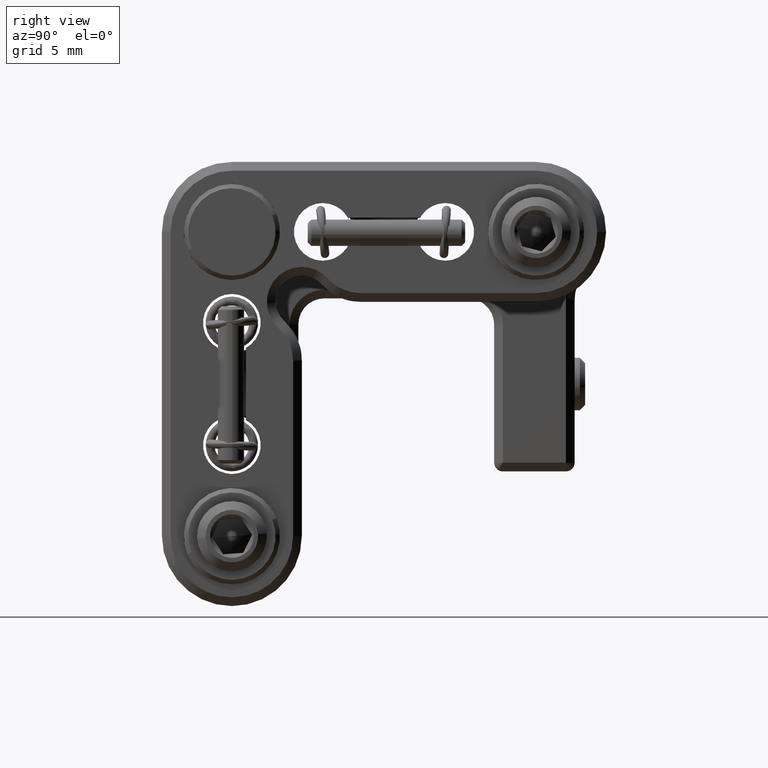
[diagram: clean part render]
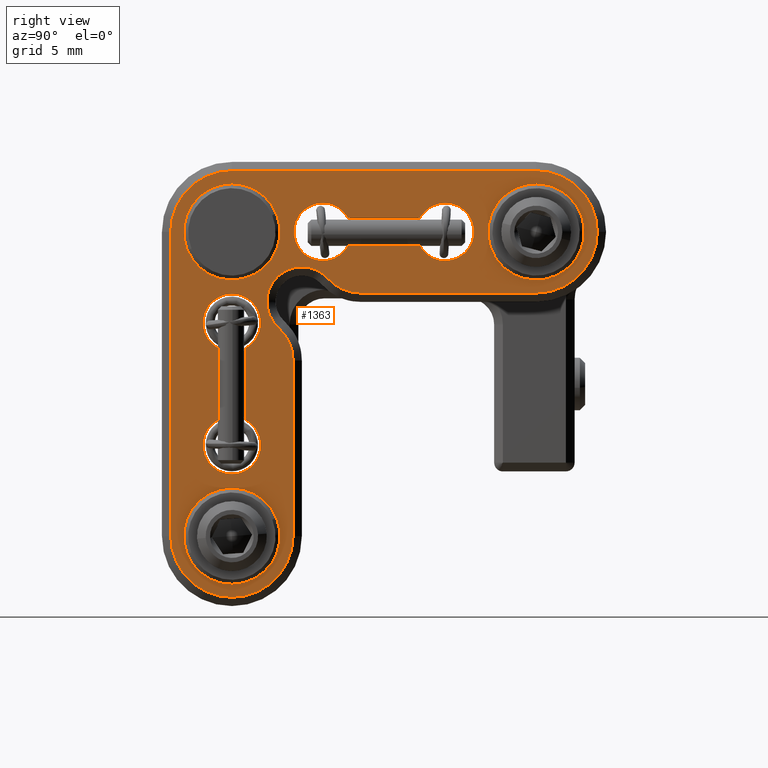
[diagram: same view with one face highlighted and labeled with its STEP entity id]
A machine part, right view. The second image highlights one B-rep face of the part: STEP entity #1363.
In plain terms, the highlighted planar face has unit normal (1, 0, 0).
Its self-contained STEP definition (entity closure, byte-faithful):
#95 = CARTESIAN_POINT ( 'NONE',  ( 27.84426557823278969, 7.499999999999995559, -9.954101966249677247 ) ) ;
#246 = DIRECTION ( 'NONE',  ( 0.0000000000000000000, 0.0000000000000000000, 1.000000000000000000 ) ) ;
#363 = EDGE_CURVE ( 'NONE', #4328, #19813, #10377, .T. ) ;
#377 = VERTEX_POINT ( 'NONE', #20586 ) ;
#387 = CARTESIAN_POINT ( 'NONE',  ( 27.84426557823278969, 21.40000000000000924, -2.599999999999991207 ) ) ;
#492 = CARTESIAN_POINT ( 'NONE',  ( 27.84426557823278969, 21.40000000000000924, 0.1500000000000016875 ) ) ;
#505 = LINE ( 'NONE', #95, #780 ) ;
#544 = DIRECTION ( 'NONE',  ( 0.0000000000000000000, 0.0000000000000000000, 1.000000000000000000 ) ) ;
#579 = EDGE_CURVE ( 'NONE', #20325, #10452, #13112, .T. ) ;
#700 = AXIS2_PLACEMENT_3D ( 'NONE', #21439, #9290, #19477 ) ;
#780 = VECTOR ( 'NONE', #3308, 1000.000000000000000 ) ;
#1047 = ORIENTED_EDGE ( 'NONE', *, *, #8469, .T. ) ;
#1068 = ORIENTED_EDGE ( 'NONE', *, *, #8689, .T. ) ;
#1241 = AXIS2_PLACEMENT_3D ( 'NONE', #2895, #11622, #11480 ) ;
#1311 = DIRECTION ( 'NONE',  ( 0.0000000000000000000, 0.0000000000000000000, 1.000000000000000000 ) ) ;
#1329 = CARTESIAN_POINT ( 'NONE',  ( 27.84426557823278969, 4.799999999999975842, -13.35691303103384620 ) ) ;
#1359 = VERTEX_POINT ( 'NONE', #16280 ) ;
#1363 = ADVANCED_FACE ( 'NONE', ( #14708, #17972, #7256, #2532, #20708, #10040 ), #14381, .T. ) ;
#1411 = CARTESIAN_POINT ( 'NONE',  ( 27.84426557823278969, 3.999999999999976019, -14.80000000000002558 ) ) ;
#1501 = DIRECTION ( 'NONE',  ( 0.0000000000000000000, 0.0000000000000000000, 1.000000000000000000 ) ) ;
#1588 = CARTESIAN_POINT ( 'NONE',  ( 27.84426557823278969, 9.199999999999999289, -0.9500000000000328182 ) ) ;
#1621 = DIRECTION ( 'NONE',  ( 1.025309737829606120E-23, 6.720346064414088947E-17, -1.000000000000000000 ) ) ;
#1653 = ORIENTED_EDGE ( 'NONE', *, *, #20885, .F. ) ;
#1687 = CARTESIAN_POINT ( 'NONE',  ( 27.84426557823278969, 4.000000000000008882, -19.99999999999999289 ) ) ;
#1800 = CIRCLE ( 'NONE', #6298, 1.649999999999998579 ) ;
#1834 = ORIENTED_EDGE ( 'NONE', *, *, #4598, .F. ) ;
#2038 = DIRECTION ( 'NONE',  ( 1.000000000000000000, 8.833440731914468542E-23, 5.569080924222307690E-23 ) ) ;
#2102 = VERTEX_POINT ( 'NONE', #3934 ) ;
#2162 = VERTEX_POINT ( 'NONE', #7538 ) ;
#2172 = VERTEX_POINT ( 'NONE', #14554 ) ;
#2183 = CIRCLE ( 'NONE', #10741, 3.499999999999989342 ) ;
#2202 = CIRCLE ( 'NONE', #3598, 3.499999999999990230 ) ;
#2277 = CARTESIAN_POINT ( 'NONE',  ( 27.84426557823278969, 21.40000000000000924, -2.599999999999998312 ) ) ;
#2370 = EDGE_LOOP ( 'NONE', ( #18186, #8114 ) ) ;
#2418 = CARTESIAN_POINT ( 'NONE',  ( 27.84426557823278969, 21.40000000000000924, -2.599999999999991207 ) ) ;
#2457 = DIRECTION ( 'NONE',  ( 1.000000000000000000, 8.833440731914468542E-23, 5.569080924222307690E-23 ) ) ;
#2532 = FACE_BOUND ( 'NONE', #2370, .T. ) ;
#2561 = CARTESIAN_POINT ( 'NONE',  ( 27.84426557823278969, 4.799999999999975842, -14.97127930704961152 ) ) ;
#2588 = CIRCLE ( 'NONE', #9062, 1.649999999999999023 ) ;
#2660 = ORIENTED_EDGE ( 'NONE', *, *, #19869, .T. ) ;
#2785 = VERTEX_POINT ( 'NONE', #16351 ) ;
#2801 = ORIENTED_EDGE ( 'NONE', *, *, #13597, .F. ) ;
#2807 = ORIENTED_EDGE ( 'NONE', *, *, #12522, .T. ) ;
#2895 = CARTESIAN_POINT ( 'NONE',  ( 27.84426557823278969, 8.000000000000007105, -6.599999999999992539 ) ) ;
#2918 = LINE ( 'NONE', #4532, #21113 ) ;
#2925 = CARTESIAN_POINT ( 'NONE',  ( 27.84426557823278969, 4.799999999999974065, -9.243086968966206740 ) ) ;
#3214 = VERTEX_POINT ( 'NONE', #9219 ) ;
#3308 = DIRECTION ( 'NONE',  ( -1.025309737829608030E-23, 6.938893903907227145E-17, 1.000000000000000000 ) ) ;
#3371 = EDGE_CURVE ( 'NONE', #10542, #2785, #2588, .T. ) ;
#3591 = AXIS2_PLACEMENT_3D ( 'NONE', #22551, #11837, #13934 ) ;
#3598 = AXIS2_PLACEMENT_3D ( 'NONE', #15015, #2457, #14800 ) ;
#3622 = VERTEX_POINT ( 'NONE', #2925 ) ;
#3635 = DIRECTION ( 'NONE',  ( 1.000000000000000000, 8.833440731914468542E-23, 5.569080924222307690E-23 ) ) ;
#3809 = CARTESIAN_POINT ( 'NONE',  ( 27.84426557823278969, 21.40000000000000924, -5.349999999999997868 ) ) ;
#3851 = DIRECTION ( 'NONE',  ( 0.0000000000000000000, 0.0000000000000000000, -1.000000000000000000 ) ) ;
#3934 = CARTESIAN_POINT ( 'NONE',  ( 27.84426557823278969, 4.000000000000008882, -5.349999999999996980 ) ) ;
#3936 = AXIS2_PLACEMENT_3D ( 'NONE', #9473, #2038, #3851 ) ;
#3963 = DIRECTION ( 'NONE',  ( 0.0000000000000000000, 0.0000000000000000000, 1.000000000000000000 ) ) ;
#3977 = DIRECTION ( 'NONE',  ( -1.000000000000000000, -8.833440731914468542E-23, -5.569080924222307690E-23 ) ) ;
#4009 = LINE ( 'NONE', #22085, #13626 ) ;
#4046 = CARTESIAN_POINT ( 'NONE',  ( 27.84426557823278969, 16.20000000000000639, -2.600000000000041389 ) ) ;
#4075 = DIRECTION ( 'NONE',  ( 1.000000000000000000, 8.833440731914468542E-23, 5.569080924222307690E-23 ) ) ;
#4328 = VERTEX_POINT ( 'NONE', #17378 ) ;
#4453 = VERTEX_POINT ( 'NONE', #19357 ) ;
#4521 = CARTESIAN_POINT ( 'NONE',  ( 27.84426557823278969, 3.199999999999975309, -13.35691303103384620 ) ) ;
#4532 = CARTESIAN_POINT ( 'NONE',  ( 27.84426557823278969, 21.40000000000000924, -6.099999999999981881 ) ) ;
#4598 = EDGE_CURVE ( 'NONE', #14950, #6392, #21520, .T. ) ;
#4667 = CARTESIAN_POINT ( 'NONE',  ( 27.84426557823278969, 3.999999999999989786, -7.800000000000020250 ) ) ;
#4671 = EDGE_CURVE ( 'NONE', #19172, #7885, #14663, .T. ) ;
#4760 = VERTEX_POINT ( 'NONE', #20329 ) ;
#4775 = EDGE_CURVE ( 'NONE', #10452, #3622, #13514, .T. ) ;
#4802 = DIRECTION ( 'NONE',  ( -1.378096284421531633E-22, 1.000000000000000000, -7.781569178111273030E-16 ) ) ;
#4807 = AXIS2_PLACEMENT_3D ( 'NONE', #2418, #13281, #7897 ) ;
#4841 = DIRECTION ( 'NONE',  ( -1.378096284421531633E-22, 1.000000000000000000, -6.938893903907227145E-17 ) ) ;
#5036 = CARTESIAN_POINT ( 'NONE',  ( 27.84426557823278969, 9.199999999999999289, -4.250000000000030198 ) ) ;
#5074 = CARTESIAN_POINT ( 'NONE',  ( 27.84426557823278969, 0.5000000000000143219, -2.599999999999991207 ) ) ;
#5245 = DIRECTION ( 'NONE',  ( 1.000000000000000000, 8.833440731914468542E-23, 5.569080924222307690E-23 ) ) ;
#5393 = CARTESIAN_POINT ( 'NONE',  ( 27.84426557823278969, 7.499999999999995559, -9.954101966249677247 ) ) ;
#5473 = CIRCLE ( 'NONE', #11267, 1.649999999999998579 ) ;
#5625 = EDGE_CURVE ( 'NONE', #21102, #8852, #14871, .T. ) ;
#5666 = EDGE_LOOP ( 'NONE', ( #22453, #11031, #8516, #19542, #10330, #1653 ) ) ;
#5882 = EDGE_CURVE ( 'NONE', #21559, #21102, #7153, .T. ) ;
#5927 = CARTESIAN_POINT ( 'NONE',  ( 27.84426557823278969, 16.37127930704962608, -1.799999999999966516 ) ) ;
#6008 = ORIENTED_EDGE ( 'NONE', *, *, #13223, .T. ) ;
#6026 = EDGE_CURVE ( 'NONE', #1359, #22389, #2183, .T. ) ;
#6109 = VERTEX_POINT ( 'NONE', #5036 ) ;
#6219 = CARTESIAN_POINT ( 'NONE',  ( 27.84426557823278969, 4.000000000000008882, -2.599999999999998312 ) ) ;
#6258 = AXIS2_PLACEMENT_3D ( 'NONE', #8998, #15761, #14146 ) ;
#6288 = ORIENTED_EDGE ( 'NONE', *, *, #6026, .T. ) ;
#6298 = AXIS2_PLACEMENT_3D ( 'NONE', #12779, #6318, #18073 ) ;
#6318 = DIRECTION ( 'NONE',  ( 1.000000000000000000, 8.833440731914468542E-23, 5.569080924222307690E-23 ) ) ;
#6392 = VERTEX_POINT ( 'NONE', #492 ) ;
#6561 = CARTESIAN_POINT ( 'NONE',  ( 27.84426557823278969, 16.37127930704962608, -3.399999999999967493 ) ) ;
#6614 = VERTEX_POINT ( 'NONE', #13361 ) ;
#6651 = EDGE_CURVE ( 'NONE', #9926, #21572, #2918, .T. ) ;
#6683 = EDGE_CURVE ( 'NONE', #4453, #2172, #22200, .T. ) ;
#6882 = VERTEX_POINT ( 'NONE', #19585 ) ;
#7153 = CIRCLE ( 'NONE', #1241, 2.000000000000011102 ) ;
#7175 = CARTESIAN_POINT ( 'NONE',  ( 27.84426557823278969, 6.666666666666664298, -8.090711984999860107 ) ) ;
#7189 = CARTESIAN_POINT ( 'NONE',  ( 27.84426557823278969, 8.000000000000007105, -6.599999999999992539 ) ) ;
#7256 = FACE_OUTER_BOUND ( 'NONE', #15969, .T. ) ;
#7272 = AXIS2_PLACEMENT_3D ( 'NONE', #387, #16435, #19808 ) ;
#7469 = VECTOR ( 'NONE', #14976, 1000.000000000000000 ) ;
#7538 = CARTESIAN_POINT ( 'NONE',  ( 27.84426557823278969, 14.75691303103386787, -1.799999999999964739 ) ) ;
#7554 = VECTOR ( 'NONE', #7883, 1000.000000000000000 ) ;
#7633 = CARTESIAN_POINT ( 'NONE',  ( 27.84426557823278969, 16.20000000000000639, -2.600000000000041389 ) ) ;
#7638 = EDGE_CURVE ( 'NONE', #17466, #14604, #4009, .T. ) ;
#7787 = CIRCLE ( 'NONE', #19908, 3.499999999999989342 ) ;
#7837 = DIRECTION ( 'NONE',  ( 1.000000000000000000, 8.833440731914468542E-23, 5.569080924222307690E-23 ) ) ;
#7883 = DIRECTION ( 'NONE',  ( 1.378096284421531633E-22, -1.000000000000000000, 7.781569178111272044E-16 ) ) ;
#7885 = VERTEX_POINT ( 'NONE', #16915 ) ;
#7897 = DIRECTION ( 'NONE',  ( 0.0000000000000000000, 0.0000000000000000000, 1.000000000000000000 ) ) ;
#7993 = AXIS2_PLACEMENT_3D ( 'NONE', #8236, #20513, #1501 ) ;
#8051 = DIRECTION ( 'NONE',  ( -1.000000000000000000, -8.833440731914468542E-23, -5.569080924222307690E-23 ) ) ;
#8114 = ORIENTED_EDGE ( 'NONE', *, *, #18610, .T. ) ;
#8236 = CARTESIAN_POINT ( 'NONE',  ( 27.84426557823278969, 9.199999999999999289, -2.600000000000031175 ) ) ;
#8272 = EDGE_CURVE ( 'NONE', #2172, #4453, #21300, .T. ) ;
#8469 = EDGE_CURVE ( 'NONE', #377, #1359, #7787, .T. ) ;
#8516 = ORIENTED_EDGE ( 'NONE', *, *, #12793, .F. ) ;
#8689 = EDGE_CURVE ( 'NONE', #15012, #21559, #21817, .T. ) ;
#8852 = VERTEX_POINT ( 'NONE', #19342 ) ;
#8998 = CARTESIAN_POINT ( 'NONE',  ( 27.84426557823278969, 11.35410196624969181, -3.599999999999991207 ) ) ;
#9036 = AXIS2_PLACEMENT_3D ( 'NONE', #6219, #8051, #9844 ) ;
#9062 = AXIS2_PLACEMENT_3D ( 'NONE', #4046, #21666, #544 ) ;
#9219 = CARTESIAN_POINT ( 'NONE',  ( 27.84426557823278969, 4.000000000000005329, 0.8999999999999998002 ) ) ;
#9268 = EDGE_CURVE ( 'NONE', #2102, #6882, #16735, .T. ) ;
#9290 = DIRECTION ( 'NONE',  ( 1.000000000000000000, 8.833440731914468542E-23, 1.025309737829607443E-23 ) ) ;
#9409 = CIRCLE ( 'NONE', #22097, 1.649999999999998579 ) ;
#9473 = CARTESIAN_POINT ( 'NONE',  ( 27.84426557823278969, 21.40000000000000924, -2.599999999999998312 ) ) ;
#9485 = CARTESIAN_POINT ( 'NONE',  ( 27.84426557823278969, 3.199999999999973532, -9.243086968966188977 ) ) ;
#9613 = VECTOR ( 'NONE', #1621, 1000.000000000000000 ) ;
#9636 = AXIS2_PLACEMENT_3D ( 'NONE', #1687, #3635, #17709 ) ;
#9733 = AXIS2_PLACEMENT_3D ( 'NONE', #13373, #21860, #22316 ) ;
#9844 = DIRECTION ( 'NONE',  ( 0.0000000000000000000, 0.0000000000000000000, -1.000000000000000000 ) ) ;
#9858 = CIRCLE ( 'NONE', #7272, 3.499999999999990230 ) ;
#9863 = AXIS2_PLACEMENT_3D ( 'NONE', #22538, #5245, #19111 ) ;
#9926 = VERTEX_POINT ( 'NONE', #18814 ) ;
#9934 = VECTOR ( 'NONE', #22604, 1000.000000000000000 ) ;
#9942 = ORIENTED_EDGE ( 'NONE', *, *, #14046, .T. ) ;
#10040 = FACE_BOUND ( 'NONE', #12169, .T. ) ;
#10148 = AXIS2_PLACEMENT_3D ( 'NONE', #7189, #16124, #3963 ) ;
#10194 = ORIENTED_EDGE ( 'NONE', *, *, #11256, .F. ) ;
#10200 = VECTOR ( 'NONE', #4802, 1000.000000000000000 ) ;
#10289 = CARTESIAN_POINT ( 'NONE',  ( 27.84426557823278969, 4.000000000000005329, 0.8999999999999998002 ) ) ;
#10330 = ORIENTED_EDGE ( 'NONE', *, *, #579, .F. ) ;
#10377 = CIRCLE ( 'NONE', #9733, 1.649999999999998579 ) ;
#10452 = VERTEX_POINT ( 'NONE', #1329 ) ;
#10540 = EDGE_LOOP ( 'NONE', ( #1834, #10194 ) ) ;
#10542 = VERTEX_POINT ( 'NONE', #13994 ) ;
#10741 = AXIS2_PLACEMENT_3D ( 'NONE', #20440, #16773, #11694 ) ;
#10926 = AXIS2_PLACEMENT_3D ( 'NONE', #1411, #15541, #22786 ) ;
#11031 = ORIENTED_EDGE ( 'NONE', *, *, #16845, .F. ) ;
#11144 = CARTESIAN_POINT ( 'NONE',  ( 27.84426557823278969, 4.000000000000008882, -2.599999999999998312 ) ) ;
#11157 = EDGE_CURVE ( 'NONE', #15073, #2162, #21905, .T. ) ;
#11256 = EDGE_CURVE ( 'NONE', #6392, #14950, #21351, .T. ) ;
#11267 = AXIS2_PLACEMENT_3D ( 'NONE', #12685, #18120, #246 ) ;
#11280 = CARTESIAN_POINT ( 'NONE',  ( 27.84426557823278969, 16.20000000000000639, -0.9500000000000425882 ) ) ;
#11306 = CIRCLE ( 'NONE', #6258, 2.499999999999989786 ) ;
#11364 = AXIS2_PLACEMENT_3D ( 'NONE', #2277, #4075, #18223 ) ;
#11377 = ORIENTED_EDGE ( 'NONE', *, *, #12102, .T. ) ;
#11433 = ORIENTED_EDGE ( 'NONE', *, *, #8272, .F. ) ;
#11480 = DIRECTION ( 'NONE',  ( 0.0000000000000000000, 0.0000000000000000000, 1.000000000000000000 ) ) ;
#11532 = CIRCLE ( 'NONE', #14535, 1.649999999999999023 ) ;
#11622 = DIRECTION ( 'NONE',  ( -1.000000000000000000, -8.833440731914468542E-23, -5.569080924222307690E-23 ) ) ;
#11694 = DIRECTION ( 'NONE',  ( 0.0000000000000000000, 0.0000000000000000000, 1.000000000000000000 ) ) ;
#11837 = DIRECTION ( 'NONE',  ( 1.000000000000000000, 8.833440731914468542E-23, 5.569080924222307690E-23 ) ) ;
#11900 = EDGE_CURVE ( 'NONE', #2162, #4328, #12228, .T. ) ;
#12102 = EDGE_CURVE ( 'NONE', #14818, #377, #14302, .T. ) ;
#12169 = EDGE_LOOP ( 'NONE', ( #18442, #11433 ) ) ;
#12228 = LINE ( 'NONE', #5927, #7554 ) ;
#12412 = CARTESIAN_POINT ( 'NONE',  ( 27.84426557823278969, 4.000000000000008882, -19.99999999999999289 ) ) ;
#12487 = EDGE_CURVE ( 'NONE', #19813, #6109, #5473, .T. ) ;
#12522 = EDGE_CURVE ( 'NONE', #21572, #19172, #9858, .T. ) ;
#12567 = CIRCLE ( 'NONE', #22479, 1.649999999999998579 ) ;
#12685 = CARTESIAN_POINT ( 'NONE',  ( 27.84426557823278969, 9.199999999999999289, -2.600000000000031175 ) ) ;
#12779 = CARTESIAN_POINT ( 'NONE',  ( 27.84426557823278969, 3.999999999999976019, -14.80000000000002558 ) ) ;
#12793 = EDGE_CURVE ( 'NONE', #3622, #6614, #12567, .T. ) ;
#13112 = CIRCLE ( 'NONE', #10926, 1.649999999999998579 ) ;
#13139 = ORIENTED_EDGE ( 'NONE', *, *, #363, .F. ) ;
#13223 = EDGE_CURVE ( 'NONE', #3214, #14818, #2202, .T. ) ;
#13267 = ORIENTED_EDGE ( 'NONE', *, *, #5625, .T. ) ;
#13281 = DIRECTION ( 'NONE',  ( 1.000000000000000000, 8.833440731914468542E-23, 5.569080924222307690E-23 ) ) ;
#13361 = CARTESIAN_POINT ( 'NONE',  ( 27.84426557823278969, 3.999999999999989786, -6.150000000000021672 ) ) ;
#13373 = CARTESIAN_POINT ( 'NONE',  ( 27.84426557823278969, 9.199999999999999289, -2.600000000000031175 ) ) ;
#13449 = ORIENTED_EDGE ( 'NONE', *, *, #12487, .F. ) ;
#13464 = LINE ( 'NONE', #6561, #10200 ) ;
#13514 = LINE ( 'NONE', #2561, #7469 ) ;
#13597 = EDGE_CURVE ( 'NONE', #2785, #15073, #11532, .T. ) ;
#13626 = VECTOR ( 'NONE', #22319, 1000.000000000000000 ) ;
#13765 = CARTESIAN_POINT ( 'NONE',  ( 27.84426557823278969, 3.999999999999976019, -16.45000000000002416 ) ) ;
#13773 = ORIENTED_EDGE ( 'NONE', *, *, #14751, .T. ) ;
#13882 = DIRECTION ( 'NONE',  ( 1.000000000000000000, 8.833440731914468542E-23, 5.569080924222307690E-23 ) ) ;
#13934 = DIRECTION ( 'NONE',  ( 0.0000000000000000000, 0.0000000000000000000, 1.000000000000000000 ) ) ;
#13994 = CARTESIAN_POINT ( 'NONE',  ( 27.84426557823278969, 14.75691303103378260, -3.399999999999965716 ) ) ;
#14046 = EDGE_CURVE ( 'NONE', #8852, #9926, #11306, .T. ) ;
#14146 = DIRECTION ( 'NONE',  ( 0.0000000000000000000, 0.0000000000000000000, 1.000000000000000000 ) ) ;
#14302 = LINE ( 'NONE', #19167, #9613 ) ;
#14338 = ORIENTED_EDGE ( 'NONE', *, *, #3371, .F. ) ;
#14355 = ORIENTED_EDGE ( 'NONE', *, *, #5882, .T. ) ;
#14377 = EDGE_LOOP ( 'NONE', ( #18424, #16639, #13449, #13139, #22337, #15991, #2801, #14338 ) ) ;
#14381 = PLANE ( 'NONE',  #700 ) ;
#14479 = CARTESIAN_POINT ( 'NONE',  ( 27.84426557823278969, 8.000000000000007105, -4.599999999999980993 ) ) ;
#14535 = AXIS2_PLACEMENT_3D ( 'NONE', #7633, #16540, #18304 ) ;
#14554 = CARTESIAN_POINT ( 'NONE',  ( 27.84426557823278969, 4.000000000000007994, -22.74999999999999289 ) ) ;
#14604 = VERTEX_POINT ( 'NONE', #4521 ) ;
#14645 = CARTESIAN_POINT ( 'NONE',  ( 27.84426557823278969, 16.20000000000000639, -2.600000000000041389 ) ) ;
#14663 = CIRCLE ( 'NONE', #4807, 3.499999999999990230 ) ;
#14708 = FACE_BOUND ( 'NONE', #14377, .T. ) ;
#14751 = EDGE_CURVE ( 'NONE', #7885, #3214, #16977, .T. ) ;
#14800 = DIRECTION ( 'NONE',  ( 0.0000000000000000000, 0.0000000000000000000, 1.000000000000000000 ) ) ;
#14818 = VERTEX_POINT ( 'NONE', #5074 ) ;
#14871 = CIRCLE ( 'NONE', #10148, 2.000000000000011102 ) ;
#14950 = VERTEX_POINT ( 'NONE', #3809 ) ;
#14976 = DIRECTION ( 'NONE',  ( -1.025309737829604798E-23, -1.668670538849460724E-16, 1.000000000000000000 ) ) ;
#15012 = VERTEX_POINT ( 'NONE', #5393 ) ;
#15015 = CARTESIAN_POINT ( 'NONE',  ( 27.84426557823278969, 4.000000000000005329, -2.599999999999991207 ) ) ;
#15073 = VERTEX_POINT ( 'NONE', #11280 ) ;
#15229 = CIRCLE ( 'NONE', #7993, 1.649999999999998579 ) ;
#15541 = DIRECTION ( 'NONE',  ( 1.000000000000000000, 8.833440731914468542E-23, 5.569080924222307690E-23 ) ) ;
#15640 = CARTESIAN_POINT ( 'NONE',  ( 27.84426557823278969, 7.499999999999994671, -19.99999999999998934 ) ) ;
#15761 = DIRECTION ( 'NONE',  ( 1.000000000000000000, 8.833440731914468542E-23, 5.569080924222307690E-23 ) ) ;
#15969 = EDGE_LOOP ( 'NONE', ( #2660, #1068, #14355, #13267, #9942, #18866, #2807, #21693, #13773, #6008, #11377, #1047, #6288 ) ) ;
#15991 = ORIENTED_EDGE ( 'NONE', *, *, #11157, .F. ) ;
#16124 = DIRECTION ( 'NONE',  ( -1.000000000000000000, -8.833440731914468542E-23, -5.569080924222307690E-23 ) ) ;
#16280 = CARTESIAN_POINT ( 'NONE',  ( 27.84426557823278969, 4.000000000000005329, -23.49999999999998579 ) ) ;
#16351 = CARTESIAN_POINT ( 'NONE',  ( 27.84426557823278969, 16.20000000000000639, -4.250000000000039968 ) ) ;
#16435 = DIRECTION ( 'NONE',  ( 1.000000000000000000, 8.833440731914468542E-23, 5.569080924222307690E-23 ) ) ;
#16540 = DIRECTION ( 'NONE',  ( 1.000000000000000000, 8.833440731914468542E-23, 5.569080924222307690E-23 ) ) ;
#16628 = CIRCLE ( 'NONE', #9036, 2.749999999999999112 ) ;
#16639 = ORIENTED_EDGE ( 'NONE', *, *, #19197, .F. ) ;
#16735 = CIRCLE ( 'NONE', #22336, 2.749999999999999112 ) ;
#16773 = DIRECTION ( 'NONE',  ( 1.000000000000000000, 8.833440731914468542E-23, 5.569080924222307690E-23 ) ) ;
#16845 = EDGE_CURVE ( 'NONE', #6614, #17466, #9409, .T. ) ;
#16915 = CARTESIAN_POINT ( 'NONE',  ( 27.84426557823278969, 21.40000000000000924, 0.8999999999999998002 ) ) ;
#16977 = LINE ( 'NONE', #10289, #9934 ) ;
#17284 = EDGE_CURVE ( 'NONE', #4760, #10542, #13464, .T. ) ;
#17378 = CARTESIAN_POINT ( 'NONE',  ( 27.84426557823278969, 10.64308696896613959, -1.799999999999963185 ) ) ;
#17466 = VERTEX_POINT ( 'NONE', #9485 ) ;
#17703 = DIRECTION ( 'NONE',  ( 0.0000000000000000000, 0.0000000000000000000, 1.000000000000000000 ) ) ;
#17709 = DIRECTION ( 'NONE',  ( 0.0000000000000000000, 0.0000000000000000000, 1.000000000000000000 ) ) ;
#17957 = DIRECTION ( 'NONE',  ( 1.000000000000000000, 8.833440731914468542E-23, 5.569080924222307690E-23 ) ) ;
#17972 = FACE_BOUND ( 'NONE', #5666, .T. ) ;
#18073 = DIRECTION ( 'NONE',  ( 0.0000000000000000000, 0.0000000000000000000, 1.000000000000000000 ) ) ;
#18120 = DIRECTION ( 'NONE',  ( 1.000000000000000000, 8.833440731914468542E-23, 5.569080924222307690E-23 ) ) ;
#18186 = ORIENTED_EDGE ( 'NONE', *, *, #9268, .T. ) ;
#18223 = DIRECTION ( 'NONE',  ( 0.0000000000000000000, 0.0000000000000000000, -1.000000000000000000 ) ) ;
#18304 = DIRECTION ( 'NONE',  ( 0.0000000000000000000, 0.0000000000000000000, 1.000000000000000000 ) ) ;
#18424 = ORIENTED_EDGE ( 'NONE', *, *, #17284, .F. ) ;
#18442 = ORIENTED_EDGE ( 'NONE', *, *, #6683, .F. ) ;
#18610 = EDGE_CURVE ( 'NONE', #6882, #2102, #16628, .T. ) ;
#18812 = CARTESIAN_POINT ( 'NONE',  ( 27.84426557823278969, 24.89999999999999858, -2.599999999999991207 ) ) ;
#18814 = CARTESIAN_POINT ( 'NONE',  ( 27.84426557823278969, 11.35410196624969359, -6.099999999999980993 ) ) ;
#18866 = ORIENTED_EDGE ( 'NONE', *, *, #6651, .T. ) ;
#19111 = DIRECTION ( 'NONE',  ( 0.0000000000000000000, 0.0000000000000000000, 1.000000000000000000 ) ) ;
#19167 = CARTESIAN_POINT ( 'NONE',  ( 27.84426557823278969, 0.5000000000000177636, -19.99999999999999289 ) ) ;
#19172 = VERTEX_POINT ( 'NONE', #18812 ) ;
#19197 = EDGE_CURVE ( 'NONE', #6109, #4760, #15229, .T. ) ;
#19342 = CARTESIAN_POINT ( 'NONE',  ( 27.84426557823278969, 9.490711984999874673, -5.266666666666650620 ) ) ;
#19357 = CARTESIAN_POINT ( 'NONE',  ( 27.84426557823278969, 4.000000000000008882, -17.24999999999999289 ) ) ;
#19379 = CARTESIAN_POINT ( 'NONE',  ( 27.84426557823278969, 21.40000000000000924, -6.099999999999981881 ) ) ;
#19477 = DIRECTION ( 'NONE',  ( -1.025309737829608030E-23, 6.938893903907227145E-17, 1.000000000000000000 ) ) ;
#19542 = ORIENTED_EDGE ( 'NONE', *, *, #4775, .F. ) ;
#19556 = CARTESIAN_POINT ( 'NONE',  ( 27.84426557823278969, 3.999999999999989786, -7.800000000000020250 ) ) ;
#19585 = CARTESIAN_POINT ( 'NONE',  ( 27.84426557823278969, 4.000000000000008882, 0.1499999999999999667 ) ) ;
#19808 = DIRECTION ( 'NONE',  ( 0.0000000000000000000, 0.0000000000000000000, 1.000000000000000000 ) ) ;
#19813 = VERTEX_POINT ( 'NONE', #1588 ) ;
#19869 = EDGE_CURVE ( 'NONE', #22389, #15012, #505, .T. ) ;
#19895 = DIRECTION ( 'NONE',  ( 0.0000000000000000000, 0.0000000000000000000, 1.000000000000000000 ) ) ;
#19908 = AXIS2_PLACEMENT_3D ( 'NONE', #12412, #13882, #17703 ) ;
#20325 = VERTEX_POINT ( 'NONE', #13765 ) ;
#20329 = CARTESIAN_POINT ( 'NONE',  ( 27.84426557823278969, 10.64308696896621598, -3.399999999999963940 ) ) ;
#20440 = CARTESIAN_POINT ( 'NONE',  ( 27.84426557823278969, 4.000000000000005329, -19.99999999999999289 ) ) ;
#20513 = DIRECTION ( 'NONE',  ( 1.000000000000000000, 8.833440731914468542E-23, 5.569080924222307690E-23 ) ) ;
#20586 = CARTESIAN_POINT ( 'NONE',  ( 27.84426557823278969, 0.5000000000000177636, -19.99999999999999289 ) ) ;
#20708 = FACE_BOUND ( 'NONE', #10540, .T. ) ;
#20885 = EDGE_CURVE ( 'NONE', #14604, #20325, #1800, .T. ) ;
#21102 = VERTEX_POINT ( 'NONE', #14479 ) ;
#21113 = VECTOR ( 'NONE', #4841, 1000.000000000000000 ) ;
#21279 = DIRECTION ( 'NONE',  ( 0.0000000000000000000, 0.0000000000000000000, 1.000000000000000000 ) ) ;
#21300 = CIRCLE ( 'NONE', #9636, 2.749999999999999112 ) ;
#21351 = CIRCLE ( 'NONE', #11364, 2.750000000000000000 ) ;
#21439 = CARTESIAN_POINT ( 'NONE',  ( 27.84426557823278969, 12.70000000000000639, -11.29999999999999361 ) ) ;
#21520 = CIRCLE ( 'NONE', #3936, 2.750000000000000000 ) ;
#21521 = DIRECTION ( 'NONE',  ( 0.0000000000000000000, 0.0000000000000000000, -1.000000000000000000 ) ) ;
#21559 = VERTEX_POINT ( 'NONE', #7175 ) ;
#21572 = VERTEX_POINT ( 'NONE', #19379 ) ;
#21666 = DIRECTION ( 'NONE',  ( 1.000000000000000000, 8.833440731914468542E-23, 5.569080924222307690E-23 ) ) ;
#21693 = ORIENTED_EDGE ( 'NONE', *, *, #4671, .T. ) ;
#21817 = CIRCLE ( 'NONE', #3591, 2.499999999999990230 ) ;
#21860 = DIRECTION ( 'NONE',  ( 1.000000000000000000, 8.833440731914468542E-23, 5.569080924222307690E-23 ) ) ;
#21905 = CIRCLE ( 'NONE', #22418, 1.649999999999999023 ) ;
#22085 = CARTESIAN_POINT ( 'NONE',  ( 27.84426557823278969, 3.199999999999975309, -14.97127930704961152 ) ) ;
#22097 = AXIS2_PLACEMENT_3D ( 'NONE', #19556, #17957, #21279 ) ;
#22200 = CIRCLE ( 'NONE', #9863, 2.749999999999999112 ) ;
#22281 = DIRECTION ( 'NONE',  ( 1.000000000000000000, 8.833440731914468542E-23, 5.569080924222307690E-23 ) ) ;
#22316 = DIRECTION ( 'NONE',  ( 0.0000000000000000000, 0.0000000000000000000, 1.000000000000000000 ) ) ;
#22319 = DIRECTION ( 'NONE',  ( 1.025309737829604798E-23, 1.668670538849460724E-16, -1.000000000000000000 ) ) ;
#22336 = AXIS2_PLACEMENT_3D ( 'NONE', #11144, #3977, #21521 ) ;
#22337 = ORIENTED_EDGE ( 'NONE', *, *, #11900, .F. ) ;
#22389 = VERTEX_POINT ( 'NONE', #15640 ) ;
#22418 = AXIS2_PLACEMENT_3D ( 'NONE', #14645, #7837, #19895 ) ;
#22453 = ORIENTED_EDGE ( 'NONE', *, *, #7638, .F. ) ;
#22479 = AXIS2_PLACEMENT_3D ( 'NONE', #4667, #22281, #1311 ) ;
#22538 = CARTESIAN_POINT ( 'NONE',  ( 27.84426557823278969, 4.000000000000008882, -19.99999999999999289 ) ) ;
#22551 = CARTESIAN_POINT ( 'NONE',  ( 27.84426557823278969, 5.000000000000005329, -9.954101966249675471 ) ) ;
#22604 = DIRECTION ( 'NONE',  ( 1.378096284421531633E-22, -1.000000000000000000, 6.938893903907227145E-17 ) ) ;
#22786 = DIRECTION ( 'NONE',  ( 0.0000000000000000000, 0.0000000000000000000, 1.000000000000000000 ) ) ;